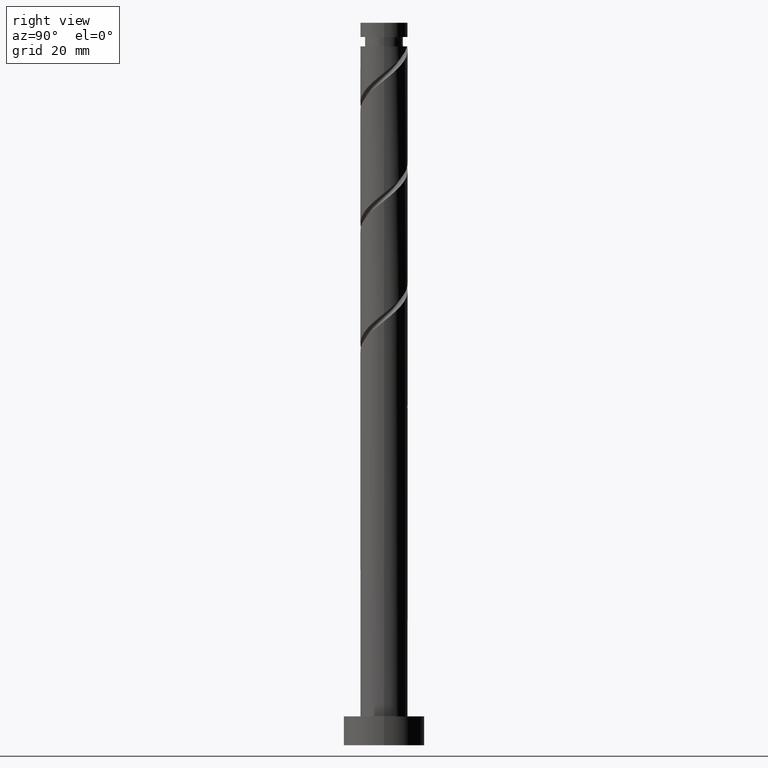
[diagram: clean part render]
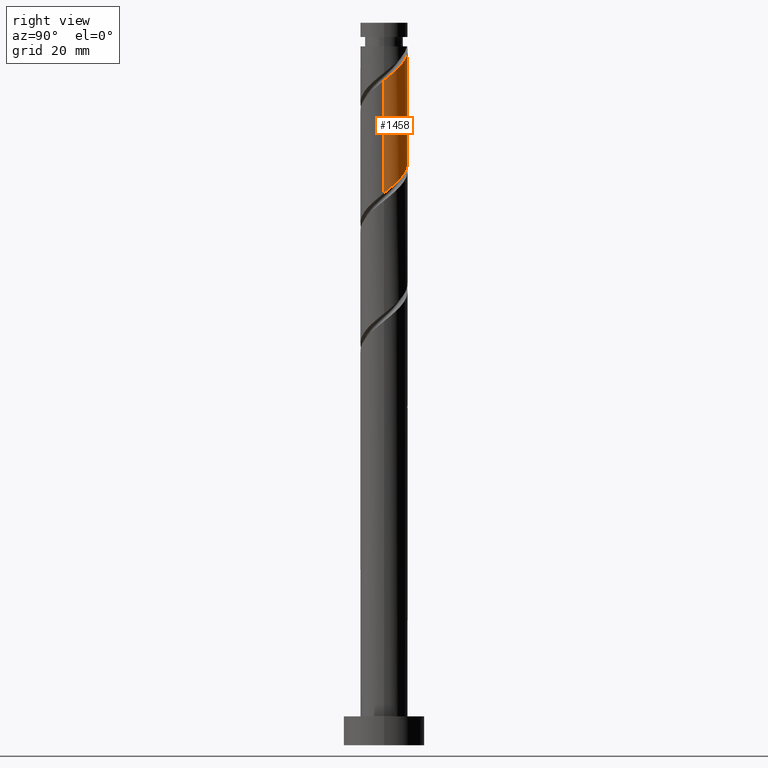
[diagram: same view with one face highlighted and labeled with its STEP entity id]
A machine part, right view. The second image highlights one B-rep face of the part: STEP entity #1458.
In plain terms, the highlighted cylindrical surface (edge-blend (fillet) strip) has radius 4.1 mm, axis along (-0, -0, -1).
Its self-contained STEP definition (entity closure, byte-faithful):
#32 = CARTESIAN_POINT ( 'NONE',  ( 4.099999999999999645, 5.021051876504147385E-16, 125.0000000000000000 ) ) ;
#85 = CARTESIAN_POINT ( 'NONE',  ( -4.100000000000000533, -2.728744706543455846E-15, 105.9448876814138742 ) ) ;
#88 = EDGE_CURVE ( 'NONE', #1513, #1090, #981, .T. ) ;
#119 = VERTEX_POINT ( 'NONE', #395 ) ;
#125 = CARTESIAN_POINT ( 'NONE',  ( 2.017587497666033958, 3.569221300124400642, 99.03008523994363088 ) ) ;
#138 = CIRCLE ( 'NONE', #1105, 4.099999999999996092 ) ;
#227 = DIRECTION ( 'NONE',  ( -0.000000000000000000, -0.000000000000000000, -1.000000000000000000 ) ) ;
#234 = CARTESIAN_POINT ( 'NONE',  ( 3.569221300124406415, 2.017587497666033958, 116.7384185732769168 ) ) ;
#270 = CARTESIAN_POINT ( 'NONE',  ( -1.701652512147915353, 3.730198215631534531, 102.1550852399436025 ) ) ;
#303 = DIRECTION ( 'NONE',  ( -0.000000000000000000, -0.000000000000000000, -1.000000000000000000 ) ) ;
#311 = CYLINDRICAL_SURFACE ( 'NONE', #350, 4.099999999999999645 ) ;
#327 = CARTESIAN_POINT ( 'NONE',  ( 2.292457868830305223, 3.460682934868148930, 118.3009185732769311 ) ) ;
#335 = CARTESIAN_POINT ( 'NONE',  ( 3.249666833500789664, 2.582896615680652097, 117.2592519066102739 ) ) ;
#346 = EDGE_CURVE ( 'NONE', #965, #402, #1543, .T. ) ;
#350 = AXIS2_PLACEMENT_3D ( 'NONE', #1185, #1036, #1303 ) ;
#360 = CARTESIAN_POINT ( 'NONE',  ( -3.569221300124400642, 2.017587497666033070, 104.2384185732769595 ) ) ;
#372 = CARTESIAN_POINT ( 'NONE',  ( -2.771062351165542559, 3.021789775274398071, 103.1967519066102739 ) ) ;
#395 = CARTESIAN_POINT ( 'NONE',  ( -4.099999999999996092, 0.000000000000000000, 120.9050852399436167 ) ) ;
#402 = VERTEX_POINT ( 'NONE', #1076 ) ;
#424 = ORIENTED_EDGE ( 'NONE', *, *, #1498, .F. ) ;
#429 = CARTESIAN_POINT ( 'NONE',  ( 0.000000000000000000, 0.000000000000000000, 120.9050852399436167 ) ) ;
#490 = CARTESIAN_POINT ( 'NONE',  ( 2.582896615680648988, 3.249666833500783447, 98.50925190661025965 ) ) ;
#561 = CARTESIAN_POINT ( 'NONE',  ( 4.100000000000004974, 1.439337867187747381E-15, 115.0319494651400021 ) ) ;
#562 = FACE_OUTER_BOUND ( 'NONE', #1342, .T. ) ;
#568 = CARTESIAN_POINT ( 'NONE',  ( 3.888775766748021834, 1.452278379651416040, 116.2175852399436167 ) ) ;
#582 = CARTESIAN_POINT ( 'NONE',  ( -4.099999999999999645, 0.000000000000000000, 125.0000000000000000 ) ) ;
#599 = CARTESIAN_POINT ( 'NONE',  ( 4.099999999999998757, 5.757351468751028178E-15, 95.52822101474720284 ) ) ;
#605 = CARTESIAN_POINT ( 'NONE',  ( 3.021789775274398959, 2.771062351165541671, 97.98841857327694527 ) ) ;
#620 = VECTOR ( 'NONE', #1170, 1000.000000000000000 ) ;
#671 = ORIENTED_EDGE ( 'NONE', *, *, #1233, .T. ) ;
#675 = CARTESIAN_POINT ( 'NONE',  ( 4.100000000000004974, 1.439337867187747381E-15, 115.0319494651400163 ) ) ;
#686 = LINE ( 'NONE', #582, #620 ) ;
#708 = CARTESIAN_POINT ( 'NONE',  ( -4.099999999999999645, 0.4120655042562786918, 105.6105831060060183 ) ) ;
#746 = CARTESIAN_POINT ( 'NONE',  ( 4.073468864823453828, 0.4656730691310440040, 95.90508523994363088 ) ) ;
#810 = DIRECTION ( 'NONE',  ( -1.000000000000000000, 0.000000000000000000, 0.000000000000000000 ) ) ;
#822 = CARTESIAN_POINT ( 'NONE',  ( 4.099999999999998757, 5.757351468751027389E-15, 95.52822101474721705 ) ) ;
#832 = ORIENTED_EDGE ( 'NONE', *, *, #346, .F. ) ;
#846 = ORIENTED_EDGE ( 'NONE', *, *, #88, .F. ) ;
#850 = CARTESIAN_POINT ( 'NONE',  ( 3.730198215631534975, 1.701652512147914909, 96.94675190661030229 ) ) ;
#947 = CARTESIAN_POINT ( 'NONE',  ( -3.888775766748016061, 1.452278379651415596, 104.7592519066102881 ) ) ;
#962 = CARTESIAN_POINT ( 'NONE',  ( 3.999713496394922796, 1.110847155465531033, 96.42591857327694527 ) ) ;
#965 = VERTEX_POINT ( 'NONE', #675 ) ;
#981 =( BOUNDED_CURVE ( )  B_SPLINE_CURVE ( 2, ( #1437, #708, #1193, #947, #360, #1353, #372, #1085, #270, #1484, #1219, #1361, #1475, #1208, #125, #490, #605, #1241, #850, #962, #746, #1368, #599 ),
 .UNSPECIFIED., .F., .T. ) 
 B_SPLINE_CURVE_WITH_KNOTS ( ( 3, 2, 2, 2, 2, 2, 2, 2, 2, 2, 2, 3 ),
 ( 0.4295322023138551937, 0.4375000000000000000, 0.4500000000000000111, 0.4625000000000000222, 0.4749999999999999778, 0.4874999999999999889, 0.5000000000000000000, 0.5124999999999999556, 0.5250000000000000222, 0.5374999999999999778, 0.5500000000000000444, 0.5545322023138551382 ),
 .UNSPECIFIED. ) 
 CURVE ( )  GEOMETRIC_REPRESENTATION_ITEM ( )  RATIONAL_B_SPLINE_CURVE ( ( 0.9039174447099351806, 0.9019565955404644786, 0.9090909090909128354, 0.8978984914501290104, 0.9090909090909128354, 0.8978984914501290104, 0.9090909090909128354, 0.8978984914501290104, 0.9090909090909128354, 0.8978984914501290104, 0.9090909090909128354, 0.8978984914501290104, 0.9090909090909128354, 0.8978984914501290104, 0.9090909090909128354, 0.8978984914501290104, 0.9090909090909128354, 0.8978984914501290104, 0.9090909090909128354, 0.8978984914501290104, 0.9090909090909128354, 0.9050328050005773672, 0.9039174447099351806 ) ) 
 REPRESENTATION_ITEM ( '' )  );
#1036 = DIRECTION ( 'NONE',  ( -0.000000000000000000, -0.000000000000000000, -1.000000000000000000 ) ) ;
#1059 = CARTESIAN_POINT ( 'NONE',  ( 4.100000000000004974, 0.4120655042562787473, 115.3662540405478580 ) ) ;
#1076 = CARTESIAN_POINT ( 'NONE',  ( -0.8158896984273806829, 4.017999999999530836, 120.9050852399435882 ) ) ;
#1085 = CARTESIAN_POINT ( 'NONE',  ( -2.292457868830301226, 3.460682934868144933, 102.6759185732769168 ) ) ;
#1090 = VERTEX_POINT ( 'NONE', #822 ) ;
#1105 = AXIS2_PLACEMENT_3D ( 'NONE', #429, #227, #810 ) ;
#1163 = CARTESIAN_POINT ( 'NONE',  ( 4.018000000000006011, 0.8158896984274285336, 115.6967519066103023 ) ) ;
#1170 = DIRECTION ( 'NONE',  ( -0.000000000000000000, -0.000000000000000000, -1.000000000000000000 ) ) ;
#1185 = CARTESIAN_POINT ( 'NONE',  ( 0.000000000000000000, 0.000000000000000000, 125.0000000000000000 ) ) ;
#1191 = CARTESIAN_POINT ( 'NONE',  ( -0.1795010172034232077, 4.147224233251985304, 120.3842519066102454 ) ) ;
#1193 = CARTESIAN_POINT ( 'NONE',  ( -4.017999999999999794, 0.8158896984274289776, 105.2800852399436167 ) ) ;
#1208 = CARTESIAN_POINT ( 'NONE',  ( 1.452278379651415818, 3.888775766748015172, 99.55091857327693106 ) ) ;
#1219 = CARTESIAN_POINT ( 'NONE',  ( -0.4656730691310446701, 4.073468864823453828, 101.1134185732769026 ) ) ;
#1233 = EDGE_CURVE ( 'NONE', #965, #1090, #1385, .T. ) ;
#1241 = CARTESIAN_POINT ( 'NONE',  ( 3.460682934868145821, 2.292457868830300338, 97.46758523994360246 ) ) ;
#1294 = CARTESIAN_POINT ( 'NONE',  ( 1.701652512147920460, 3.730198215631539860, 118.8217519066102739 ) ) ;
#1303 = DIRECTION ( 'NONE',  ( -1.000000000000000000, 0.000000000000000000, 0.000000000000000000 ) ) ;
#1307 = VECTOR ( 'NONE', #303, 1000.000000000000000 ) ;
#1331 = ORIENTED_EDGE ( 'NONE', *, *, #1547, .T. ) ;
#1342 = EDGE_LOOP ( 'NONE', ( #832, #671, #846, #424, #1331 ) ) ;
#1353 = CARTESIAN_POINT ( 'NONE',  ( -3.249666833500783447, 2.582896615680648988, 103.7175852399435882 ) ) ;
#1361 = CARTESIAN_POINT ( 'NONE',  ( 0.1795010172034419704, 4.147224233251981751, 100.5925852399436167 ) ) ;
#1368 = CARTESIAN_POINT ( 'NONE',  ( 4.099999999999999645, 0.2335923235303769829, 95.71773210395450349 ) ) ;
#1385 = LINE ( 'NONE', #32, #1307 ) ;
#1437 = CARTESIAN_POINT ( 'NONE',  ( -4.100000000000000533, -2.728744706543455846E-15, 105.9448876814138742 ) ) ;
#1443 = CARTESIAN_POINT ( 'NONE',  ( 1.110847155465534586, 3.999713496394928569, 119.3425852399436167 ) ) ;
#1458 = ADVANCED_FACE ( 'NONE', ( #562 ), #311, .T. ) ;
#1475 = CARTESIAN_POINT ( 'NONE',  ( 0.8158896984274297548, 4.017999999999999794, 100.0717519066102739 ) ) ;
#1484 = CARTESIAN_POINT ( 'NONE',  ( -1.110847155465531699, 3.999713496394922796, 101.6342519066102597 ) ) ;
#1498 = EDGE_CURVE ( 'NONE', #119, #1513, #686, .T. ) ;
#1513 = VERTEX_POINT ( 'NONE', #85 ) ;
#1539 = CARTESIAN_POINT ( 'NONE',  ( 2.771062351165547000, 3.021789775274400291, 117.7800852399436167 ) ) ;
#1543 =( BOUNDED_CURVE ( )  B_SPLINE_CURVE ( 2, ( #561, #1059, #1163, #568, #234, #335, #1539, #327, #1294, #1443, #1559, #1191, #1553 ),
 .UNSPECIFIED., .F., .T. ) 
 B_SPLINE_CURVE_WITH_KNOTS ( ( 3, 2, 2, 2, 2, 2, 3 ),
 ( 0.6795322023138552492, 0.6875000000000000000, 0.6999999999999998446, 0.7124999999999999112, 0.7249999999999997558, 0.7374999999999998224, 0.7499999999999996669 ),
 .UNSPECIFIED. ) 
 CURVE ( )  GEOMETRIC_REPRESENTATION_ITEM ( )  RATIONAL_B_SPLINE_CURVE ( ( 0.9039174447099410648, 0.9019565955404704738, 0.9090909090909189416, 0.8978984914501350056, 0.9090909090909189416, 0.8978984914501350056, 0.9090909090909189416, 0.8978984914501350056, 0.9090909090909189416, 0.8978984914501350056, 0.9090909090909189416, 0.8978984914501353387, 0.9090909090909186085 ) ) 
 REPRESENTATION_ITEM ( '' )  );
#1547 = EDGE_CURVE ( 'NONE', #119, #402, #138, .T. ) ;
#1553 = CARTESIAN_POINT ( 'NONE',  ( -0.8158896984273806829, 4.017999999999530836, 120.9050852399435882 ) ) ;
#1559 = CARTESIAN_POINT ( 'NONE',  ( 0.4656730691310470571, 4.073468864823459157, 119.8634185732769737 ) ) ;